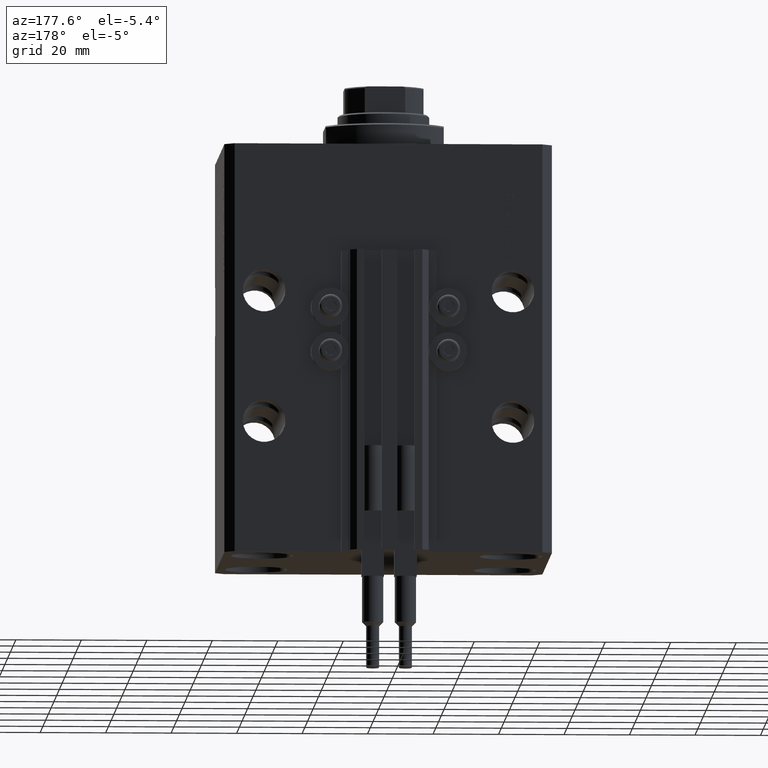
[diagram: clean part render]
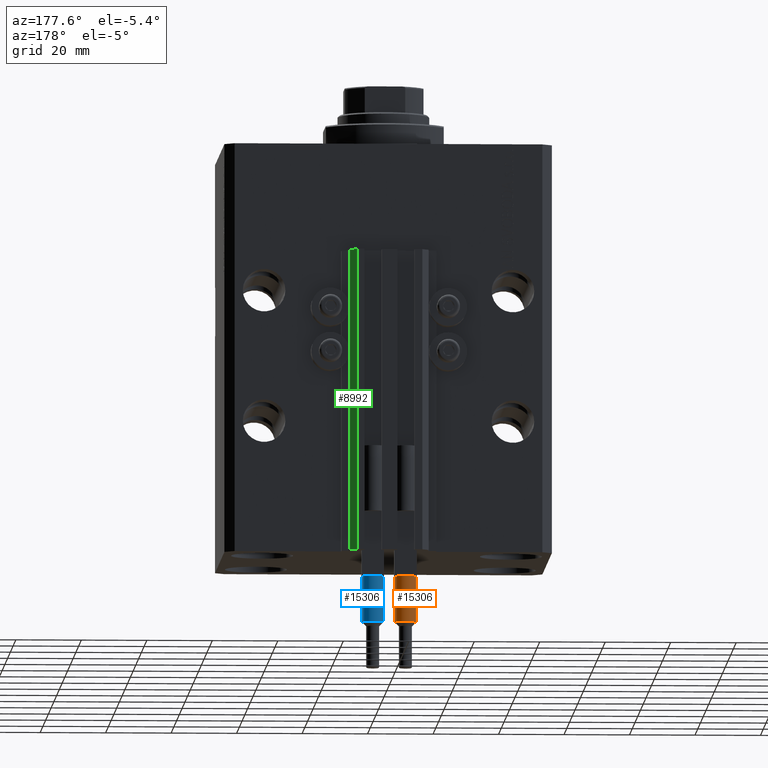
[diagram: same view with three faces highlighted in distinct colors, each labeled with its STEP entity id]
A machine part, auxiliary view with three faces highlighted in distinct colors.
Their STEP definitions:

[orange] entity #15306 — the highlighted cylindrical surface (edge-blend (fillet) strip) has radius 3.25 mm, axis along (0, 0, 1).
#950 = CARTESIAN_POINT ( 'NONE',  ( 3.250000000000000444, 3.980102097228898231E-16, 56.00000000000000000 ) ) ;
#1752 = CARTESIAN_POINT ( 'NONE',  ( 0.000000000000000000, 0.000000000000000000, 56.00000000000000000 ) ) ;
#2033 = CARTESIAN_POINT ( 'NONE',  ( -2.883140648667699146, 1.500000000000000000, 40.00000000000000000 ) ) ;
#3290 = AXIS2_PLACEMENT_3D ( 'NONE', #1752, #5229, #39427 ) ;
#3420 = VERTEX_POINT ( 'NONE', #27718 ) ;
#5229 = DIRECTION ( 'NONE',  ( -0.000000000000000000, -0.000000000000000000, -1.000000000000000000 ) ) ;
#5868 = ORIENTED_EDGE ( 'NONE', *, *, #14653, .T. ) ;
#6493 = VERTEX_POINT ( 'NONE', #44077 ) ;
#7053 = ORIENTED_EDGE ( 'NONE', *, *, #44330, .T. ) ;
#7060 = ORIENTED_EDGE ( 'NONE', *, *, #24217, .F. ) ;
#7503 = CARTESIAN_POINT ( 'NONE',  ( 3.250000000000000444, 3.980102097228898231E-16, 53.99999999999998579 ) ) ;
#9613 = AXIS2_PLACEMENT_3D ( 'NONE', #18517, #48967, #18761 ) ;
#10264 = VERTEX_POINT ( 'NONE', #48803 ) ;
#13146 = VERTEX_POINT ( 'NONE', #7503 ) ;
#13245 = DIRECTION ( 'NONE',  ( -0.000000000000000000, -0.000000000000000000, -1.000000000000000000 ) ) ;
#13585 = CIRCLE ( 'NONE', #9613, 3.250000000000000444 ) ;
#14653 = EDGE_CURVE ( 'NONE', #6493, #13146, #13585, .T. ) ;
#15106 = AXIS2_PLACEMENT_3D ( 'NONE', #16383, #31499, #28519 ) ;
#15306 = ADVANCED_FACE ( 'NONE', ( #24335 ), #39186, .T. ) ;
#16127 = DIRECTION ( 'NONE',  ( 1.000000000000000000, 0.000000000000000000, 0.000000000000000000 ) ) ;
#16383 = CARTESIAN_POINT ( 'NONE',  ( 0.000000000000000000, 0.000000000000000000, 40.00000000000000000 ) ) ;
#16867 = ORIENTED_EDGE ( 'NONE', *, *, #20201, .T. ) ;
#16977 = CARTESIAN_POINT ( 'NONE',  ( -3.250000000000000444, 0.000000000000000000, 56.00000000000000000 ) ) ;
#18517 = CARTESIAN_POINT ( 'NONE',  ( 0.000000000000000000, 0.000000000000000000, 53.99999999999998579 ) ) ;
#18761 = DIRECTION ( 'NONE',  ( 1.000000000000000000, 0.000000000000000000, 0.000000000000000000 ) ) ;
#19090 = CIRCLE ( 'NONE', #15106, 3.250000000000000444 ) ;
#20060 = DIRECTION ( 'NONE',  ( -0.000000000000000000, -0.000000000000000000, -1.000000000000000000 ) ) ;
#20201 = EDGE_CURVE ( 'NONE', #13146, #3420, #46542, .T. ) ;
#20589 = CARTESIAN_POINT ( 'NONE',  ( 0.000000000000000000, 0.000000000000000000, 40.00000000000000000 ) ) ;
#24217 = EDGE_CURVE ( 'NONE', #6493, #45539, #40006, .T. ) ;
#24335 = FACE_OUTER_BOUND ( 'NONE', #47793, .T. ) ;
#24797 = DIRECTION ( 'NONE',  ( 0.000000000000000000, 0.000000000000000000, 1.000000000000000000 ) ) ;
#26815 = EDGE_CURVE ( 'NONE', #44260, #45539, #30525, .T. ) ;
#27718 = CARTESIAN_POINT ( 'NONE',  ( 3.250000000000000444, 3.980102097228898231E-16, 40.00000000000000000 ) ) ;
#27841 = CIRCLE ( 'NONE', #41246, 3.250000000000000444 ) ;
#28519 = DIRECTION ( 'NONE',  ( 1.000000000000000000, 0.000000000000000000, 0.000000000000000000 ) ) ;
#29770 = CARTESIAN_POINT ( 'NONE',  ( 0.000000000000000000, 0.000000000000000000, 40.00000000000000000 ) ) ;
#30525 = CIRCLE ( 'NONE', #36066, 3.250000000000000444 ) ;
#31499 = DIRECTION ( 'NONE',  ( 0.000000000000000000, 0.000000000000000000, 1.000000000000000000 ) ) ;
#32762 = DIRECTION ( 'NONE',  ( 1.000000000000000000, 0.000000000000000000, 0.000000000000000000 ) ) ;
#33236 = DIRECTION ( 'NONE',  ( 0.000000000000000000, 0.000000000000000000, 1.000000000000000000 ) ) ;
#36066 = AXIS2_PLACEMENT_3D ( 'NONE', #20589, #24797, #16127 ) ;
#37538 = VECTOR ( 'NONE', #13245, 1000.000000000000000 ) ;
#38175 = VECTOR ( 'NONE', #20060, 1000.000000000000000 ) ;
#39186 = CYLINDRICAL_SURFACE ( 'NONE', #3290, 3.250000000000000444 ) ;
#39427 = DIRECTION ( 'NONE',  ( -1.000000000000000000, 0.000000000000000000, 0.000000000000000000 ) ) ;
#40006 = LINE ( 'NONE', #16977, #37538 ) ;
#40382 = ORIENTED_EDGE ( 'NONE', *, *, #26815, .T. ) ;
#41246 = AXIS2_PLACEMENT_3D ( 'NONE', #29770, #33236, #32762 ) ;
#44077 = CARTESIAN_POINT ( 'NONE',  ( -3.250000000000000444, 0.000000000000000000, 53.99999999999998579 ) ) ;
#44206 = CARTESIAN_POINT ( 'NONE',  ( -3.250000000000000444, 0.000000000000000000, 40.00000000000000000 ) ) ;
#44260 = VERTEX_POINT ( 'NONE', #2033 ) ;
#44330 = EDGE_CURVE ( 'NONE', #10264, #44260, #27841, .T. ) ;
#45539 = VERTEX_POINT ( 'NONE', #44206 ) ;
#46096 = ORIENTED_EDGE ( 'NONE', *, *, #47007, .T. ) ;
#46542 = LINE ( 'NONE', #950, #38175 ) ;
#47007 = EDGE_CURVE ( 'NONE', #3420, #10264, #19090, .T. ) ;
#47793 = EDGE_LOOP ( 'NONE', ( #5868, #16867, #46096, #7053, #40382, #7060 ) ) ;
#48803 = CARTESIAN_POINT ( 'NONE',  ( 2.883140648667699146, 1.500000000000000000, 40.00000000000000000 ) ) ;
#48967 = DIRECTION ( 'NONE',  ( 0.000000000000000000, 0.000000000000000000, -1.000000000000000000 ) ) ;

[blue] entity #15306 — the highlighted cylindrical surface (edge-blend (fillet) strip) has radius 3.25 mm, axis along (0, 0, 1).
#950 = CARTESIAN_POINT ( 'NONE',  ( 3.250000000000000444, 3.980102097228898231E-16, 56.00000000000000000 ) ) ;
#1752 = CARTESIAN_POINT ( 'NONE',  ( 0.000000000000000000, 0.000000000000000000, 56.00000000000000000 ) ) ;
#2033 = CARTESIAN_POINT ( 'NONE',  ( -2.883140648667699146, 1.500000000000000000, 40.00000000000000000 ) ) ;
#3290 = AXIS2_PLACEMENT_3D ( 'NONE', #1752, #5229, #39427 ) ;
#3420 = VERTEX_POINT ( 'NONE', #27718 ) ;
#5229 = DIRECTION ( 'NONE',  ( -0.000000000000000000, -0.000000000000000000, -1.000000000000000000 ) ) ;
#5868 = ORIENTED_EDGE ( 'NONE', *, *, #14653, .T. ) ;
#6493 = VERTEX_POINT ( 'NONE', #44077 ) ;
#7053 = ORIENTED_EDGE ( 'NONE', *, *, #44330, .T. ) ;
#7060 = ORIENTED_EDGE ( 'NONE', *, *, #24217, .F. ) ;
#7503 = CARTESIAN_POINT ( 'NONE',  ( 3.250000000000000444, 3.980102097228898231E-16, 53.99999999999998579 ) ) ;
#9613 = AXIS2_PLACEMENT_3D ( 'NONE', #18517, #48967, #18761 ) ;
#10264 = VERTEX_POINT ( 'NONE', #48803 ) ;
#13146 = VERTEX_POINT ( 'NONE', #7503 ) ;
#13245 = DIRECTION ( 'NONE',  ( -0.000000000000000000, -0.000000000000000000, -1.000000000000000000 ) ) ;
#13585 = CIRCLE ( 'NONE', #9613, 3.250000000000000444 ) ;
#14653 = EDGE_CURVE ( 'NONE', #6493, #13146, #13585, .T. ) ;
#15106 = AXIS2_PLACEMENT_3D ( 'NONE', #16383, #31499, #28519 ) ;
#15306 = ADVANCED_FACE ( 'NONE', ( #24335 ), #39186, .T. ) ;
#16127 = DIRECTION ( 'NONE',  ( 1.000000000000000000, 0.000000000000000000, 0.000000000000000000 ) ) ;
#16383 = CARTESIAN_POINT ( 'NONE',  ( 0.000000000000000000, 0.000000000000000000, 40.00000000000000000 ) ) ;
#16867 = ORIENTED_EDGE ( 'NONE', *, *, #20201, .T. ) ;
#16977 = CARTESIAN_POINT ( 'NONE',  ( -3.250000000000000444, 0.000000000000000000, 56.00000000000000000 ) ) ;
#18517 = CARTESIAN_POINT ( 'NONE',  ( 0.000000000000000000, 0.000000000000000000, 53.99999999999998579 ) ) ;
#18761 = DIRECTION ( 'NONE',  ( 1.000000000000000000, 0.000000000000000000, 0.000000000000000000 ) ) ;
#19090 = CIRCLE ( 'NONE', #15106, 3.250000000000000444 ) ;
#20060 = DIRECTION ( 'NONE',  ( -0.000000000000000000, -0.000000000000000000, -1.000000000000000000 ) ) ;
#20201 = EDGE_CURVE ( 'NONE', #13146, #3420, #46542, .T. ) ;
#20589 = CARTESIAN_POINT ( 'NONE',  ( 0.000000000000000000, 0.000000000000000000, 40.00000000000000000 ) ) ;
#24217 = EDGE_CURVE ( 'NONE', #6493, #45539, #40006, .T. ) ;
#24335 = FACE_OUTER_BOUND ( 'NONE', #47793, .T. ) ;
#24797 = DIRECTION ( 'NONE',  ( 0.000000000000000000, 0.000000000000000000, 1.000000000000000000 ) ) ;
#26815 = EDGE_CURVE ( 'NONE', #44260, #45539, #30525, .T. ) ;
#27718 = CARTESIAN_POINT ( 'NONE',  ( 3.250000000000000444, 3.980102097228898231E-16, 40.00000000000000000 ) ) ;
#27841 = CIRCLE ( 'NONE', #41246, 3.250000000000000444 ) ;
#28519 = DIRECTION ( 'NONE',  ( 1.000000000000000000, 0.000000000000000000, 0.000000000000000000 ) ) ;
#29770 = CARTESIAN_POINT ( 'NONE',  ( 0.000000000000000000, 0.000000000000000000, 40.00000000000000000 ) ) ;
#30525 = CIRCLE ( 'NONE', #36066, 3.250000000000000444 ) ;
#31499 = DIRECTION ( 'NONE',  ( 0.000000000000000000, 0.000000000000000000, 1.000000000000000000 ) ) ;
#32762 = DIRECTION ( 'NONE',  ( 1.000000000000000000, 0.000000000000000000, 0.000000000000000000 ) ) ;
#33236 = DIRECTION ( 'NONE',  ( 0.000000000000000000, 0.000000000000000000, 1.000000000000000000 ) ) ;
#36066 = AXIS2_PLACEMENT_3D ( 'NONE', #20589, #24797, #16127 ) ;
#37538 = VECTOR ( 'NONE', #13245, 1000.000000000000000 ) ;
#38175 = VECTOR ( 'NONE', #20060, 1000.000000000000000 ) ;
#39186 = CYLINDRICAL_SURFACE ( 'NONE', #3290, 3.250000000000000444 ) ;
#39427 = DIRECTION ( 'NONE',  ( -1.000000000000000000, 0.000000000000000000, 0.000000000000000000 ) ) ;
#40006 = LINE ( 'NONE', #16977, #37538 ) ;
#40382 = ORIENTED_EDGE ( 'NONE', *, *, #26815, .T. ) ;
#41246 = AXIS2_PLACEMENT_3D ( 'NONE', #29770, #33236, #32762 ) ;
#44077 = CARTESIAN_POINT ( 'NONE',  ( -3.250000000000000444, 0.000000000000000000, 53.99999999999998579 ) ) ;
#44206 = CARTESIAN_POINT ( 'NONE',  ( -3.250000000000000444, 0.000000000000000000, 40.00000000000000000 ) ) ;
#44260 = VERTEX_POINT ( 'NONE', #2033 ) ;
#44330 = EDGE_CURVE ( 'NONE', #10264, #44260, #27841, .T. ) ;
#45539 = VERTEX_POINT ( 'NONE', #44206 ) ;
#46096 = ORIENTED_EDGE ( 'NONE', *, *, #47007, .T. ) ;
#46542 = LINE ( 'NONE', #950, #38175 ) ;
#47007 = EDGE_CURVE ( 'NONE', #3420, #10264, #19090, .T. ) ;
#47793 = EDGE_LOOP ( 'NONE', ( #5868, #16867, #46096, #7053, #40382, #7060 ) ) ;
#48803 = CARTESIAN_POINT ( 'NONE',  ( 2.883140648667699146, 1.500000000000000000, 40.00000000000000000 ) ) ;
#48967 = DIRECTION ( 'NONE',  ( 0.000000000000000000, 0.000000000000000000, -1.000000000000000000 ) ) ;

[green] entity #8992 — the highlighted planar face has unit normal (0.7071, 0.7071, 0).
#42 = VECTOR ( 'NONE', #33899, 1000.000000000000114 ) ;
#313 = DIRECTION ( 'NONE',  ( 0.000000000000000000, 0.000000000000000000, 1.000000000000000000 ) ) ;
#1110 = LINE ( 'NONE', #23924, #2406 ) ;
#1380 = CARTESIAN_POINT ( 'NONE',  ( 12.00000000000000000, 43.50000000000002132, -125.0000000000000000 ) ) ;
#2130 = CARTESIAN_POINT ( 'NONE',  ( 12.00000000000000000, 43.50000000000002132, -125.0000000000000000 ) ) ;
#2351 = CARTESIAN_POINT ( 'NONE',  ( 12.00000000000000000, 43.50000000000002132, -125.0000000000000000 ) ) ;
#2406 = VECTOR ( 'NONE', #5554, 1000.000000000000114 ) ;
#2612 = DIRECTION ( 'NONE',  ( 0.000000000000000000, 0.000000000000000000, 1.000000000000000000 ) ) ;
#3596 = AXIS2_PLACEMENT_3D ( 'NONE', #2351, #33076, #9782 ) ;
#5281 = VERTEX_POINT ( 'NONE', #31926 ) ;
#5554 = DIRECTION ( 'NONE',  ( -0.7071067811865474617, 0.7071067811865474617, 0.000000000000000000 ) ) ;
#6883 = CARTESIAN_POINT ( 'NONE',  ( 12.00000000000000000, 43.50000000000002132, -125.0000000000000000 ) ) ;
#8992 = ADVANCED_FACE ( 'NONE', ( #17966 ), #14476, .T. ) ;
#9453 = ORIENTED_EDGE ( 'NONE', *, *, #31304, .T. ) ;
#9782 = DIRECTION ( 'NONE',  ( -0.7071067811865474617, 0.7071067811865474617, 0.000000000000000000 ) ) ;
#11464 = CARTESIAN_POINT ( 'NONE',  ( 9.999999999999998224, 45.50000000000002842, -125.0000000000000000 ) ) ;
#12947 = EDGE_CURVE ( 'NONE', #40888, #5281, #1110, .T. ) ;
#13718 = ORIENTED_EDGE ( 'NONE', *, *, #21676, .F. ) ;
#13772 = LINE ( 'NONE', #2130, #20871 ) ;
#14476 = PLANE ( 'NONE',  #3596 ) ;
#17562 = CARTESIAN_POINT ( 'NONE',  ( 12.00000000000000000, 43.50000000000002132, -33.00000000000000000 ) ) ;
#17773 = VERTEX_POINT ( 'NONE', #1380 ) ;
#17966 = FACE_OUTER_BOUND ( 'NONE', #19713, .T. ) ;
#19713 = EDGE_LOOP ( 'NONE', ( #21896, #13718, #32934, #9453 ) ) ;
#20871 = VECTOR ( 'NONE', #2612, 1000.000000000000000 ) ;
#21676 = EDGE_CURVE ( 'NONE', #17773, #40888, #13772, .T. ) ;
#21896 = ORIENTED_EDGE ( 'NONE', *, *, #12947, .F. ) ;
#23924 = CARTESIAN_POINT ( 'NONE',  ( 12.00000000000000000, 43.50000000000002132, -33.00000000000000000 ) ) ;
#26227 = LINE ( 'NONE', #6883, #42 ) ;
#26719 = VERTEX_POINT ( 'NONE', #38180 ) ;
#31304 = EDGE_CURVE ( 'NONE', #26719, #5281, #37750, .T. ) ;
#31926 = CARTESIAN_POINT ( 'NONE',  ( 9.999999999999998224, 45.50000000000002842, -33.00000000000000000 ) ) ;
#32238 = VECTOR ( 'NONE', #313, 1000.000000000000000 ) ;
#32934 = ORIENTED_EDGE ( 'NONE', *, *, #43488, .T. ) ;
#33076 = DIRECTION ( 'NONE',  ( 0.7071067811865475727, 0.7071067811865475727, -0.000000000000000000 ) ) ;
#33899 = DIRECTION ( 'NONE',  ( -0.7071067811865474617, 0.7071067811865474617, 0.000000000000000000 ) ) ;
#37750 = LINE ( 'NONE', #11464, #32238 ) ;
#38180 = CARTESIAN_POINT ( 'NONE',  ( 9.999999999999998224, 45.50000000000002842, -125.0000000000000000 ) ) ;
#40888 = VERTEX_POINT ( 'NONE', #17562 ) ;
#43488 = EDGE_CURVE ( 'NONE', #17773, #26719, #26227, .T. ) ;